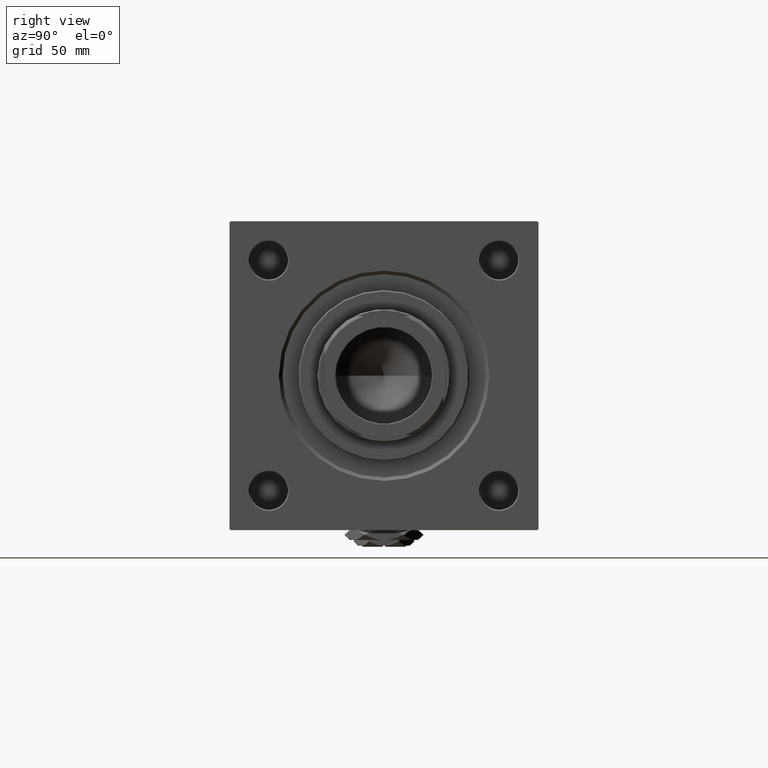
[diagram: clean part render]
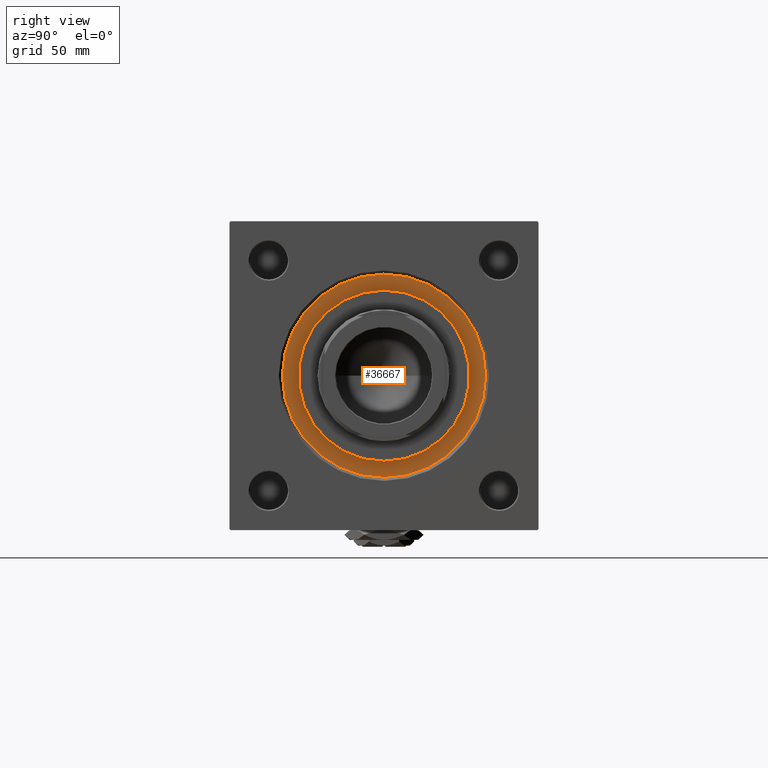
[diagram: same view with one face highlighted and labeled with its STEP entity id]
A machine part, right view. The second image highlights one B-rep face of the part: STEP entity #36667.
In plain terms, the highlighted planar face has unit normal (1, 0, 0).
Its self-contained STEP definition (entity closure, byte-faithful):
#206 = CIRCLE ( 'NONE', #20667, 42.75000000000000000 ) ;
#219 = CARTESIAN_POINT ( 'NONE',  ( 36.00000000000000000, 4.408728476930470856E-15, 28.69999999999999929 ) ) ;
#2086 = CIRCLE ( 'NONE', #31985, 36.00000000000000000 ) ;
#4373 = VERTEX_POINT ( 'NONE', #35474 ) ;
#4437 = DIRECTION ( 'NONE',  ( 1.000000000000000000, 0.000000000000000000, 0.000000000000000000 ) ) ;
#4511 = EDGE_CURVE ( 'NONE', #9407, #11920, #35274, .T. ) ;
#7139 = CARTESIAN_POINT ( 'NONE',  ( 42.75000000000000000, 5.235365066354935472E-15, 28.69999999999999929 ) ) ;
#7199 = CARTESIAN_POINT ( 'NONE',  ( 0.000000000000000000, 0.000000000000000000, 28.69999999999999929 ) ) ;
#7421 = EDGE_CURVE ( 'NONE', #4373, #42640, #2086, .T. ) ;
#7943 = ORIENTED_EDGE ( 'NONE', *, *, #34684, .F. ) ;
#9407 = VERTEX_POINT ( 'NONE', #40857 ) ;
#10265 = CARTESIAN_POINT ( 'NONE',  ( 0.000000000000000000, 0.000000000000000000, 28.69999999999999929 ) ) ;
#11920 = VERTEX_POINT ( 'NONE', #7139 ) ;
#14931 = DIRECTION ( 'NONE',  ( 0.000000000000000000, 0.000000000000000000, 1.000000000000000000 ) ) ;
#16519 = DIRECTION ( 'NONE',  ( 1.000000000000000000, 0.000000000000000000, 0.000000000000000000 ) ) ;
#16846 = EDGE_LOOP ( 'NONE', ( #29067, #30640 ) ) ;
#20667 = AXIS2_PLACEMENT_3D ( 'NONE', #20781, #33097, #16519 ) ;
#20742 = DIRECTION ( 'NONE',  ( 1.000000000000000000, 0.000000000000000000, 0.000000000000000000 ) ) ;
#20781 = CARTESIAN_POINT ( 'NONE',  ( 0.000000000000000000, 0.000000000000000000, 28.69999999999999929 ) ) ;
#21486 = ORIENTED_EDGE ( 'NONE', *, *, #7421, .F. ) ;
#22669 = FACE_OUTER_BOUND ( 'NONE', #16846, .T. ) ;
#23349 = DIRECTION ( 'NONE',  ( 1.000000000000000000, 0.000000000000000000, 0.000000000000000000 ) ) ;
#24656 = AXIS2_PLACEMENT_3D ( 'NONE', #10265, #42596, #23349 ) ;
#26938 = PLANE ( 'NONE',  #48610 ) ;
#27620 = AXIS2_PLACEMENT_3D ( 'NONE', #32285, #45064, #20742 ) ;
#29067 = ORIENTED_EDGE ( 'NONE', *, *, #4511, .T. ) ;
#30640 = ORIENTED_EDGE ( 'NONE', *, *, #47048, .T. ) ;
#30698 = FACE_BOUND ( 'NONE', #39058, .T. ) ;
#31985 = AXIS2_PLACEMENT_3D ( 'NONE', #45813, #50085, #4437 ) ;
#32285 = CARTESIAN_POINT ( 'NONE',  ( 0.000000000000000000, 0.000000000000000000, 28.69999999999999929 ) ) ;
#33097 = DIRECTION ( 'NONE',  ( 0.000000000000000000, 0.000000000000000000, 1.000000000000000000 ) ) ;
#34684 = EDGE_CURVE ( 'NONE', #42640, #4373, #42550, .T. ) ;
#35274 = CIRCLE ( 'NONE', #27620, 42.75000000000000000 ) ;
#35474 = CARTESIAN_POINT ( 'NONE',  ( -36.00000000000000000, 0.000000000000000000, 28.69999999999999929 ) ) ;
#36667 = ADVANCED_FACE ( 'NONE', ( #30698, #22669 ), #26938, .T. ) ;
#39058 = EDGE_LOOP ( 'NONE', ( #21486, #7943 ) ) ;
#40857 = CARTESIAN_POINT ( 'NONE',  ( -42.75000000000000000, 0.000000000000000000, 28.69999999999999929 ) ) ;
#42550 = CIRCLE ( 'NONE', #24656, 36.00000000000000000 ) ;
#42596 = DIRECTION ( 'NONE',  ( 0.000000000000000000, 0.000000000000000000, 1.000000000000000000 ) ) ;
#42640 = VERTEX_POINT ( 'NONE', #219 ) ;
#45064 = DIRECTION ( 'NONE',  ( 0.000000000000000000, 0.000000000000000000, 1.000000000000000000 ) ) ;
#45813 = CARTESIAN_POINT ( 'NONE',  ( 0.000000000000000000, 0.000000000000000000, 28.69999999999999929 ) ) ;
#47048 = EDGE_CURVE ( 'NONE', #11920, #9407, #206, .T. ) ;
#48610 = AXIS2_PLACEMENT_3D ( 'NONE', #7199, #14931, #51241 ) ;
#50085 = DIRECTION ( 'NONE',  ( 0.000000000000000000, 0.000000000000000000, 1.000000000000000000 ) ) ;
#51241 = DIRECTION ( 'NONE',  ( 1.000000000000000000, 0.000000000000000000, -0.000000000000000000 ) ) ;